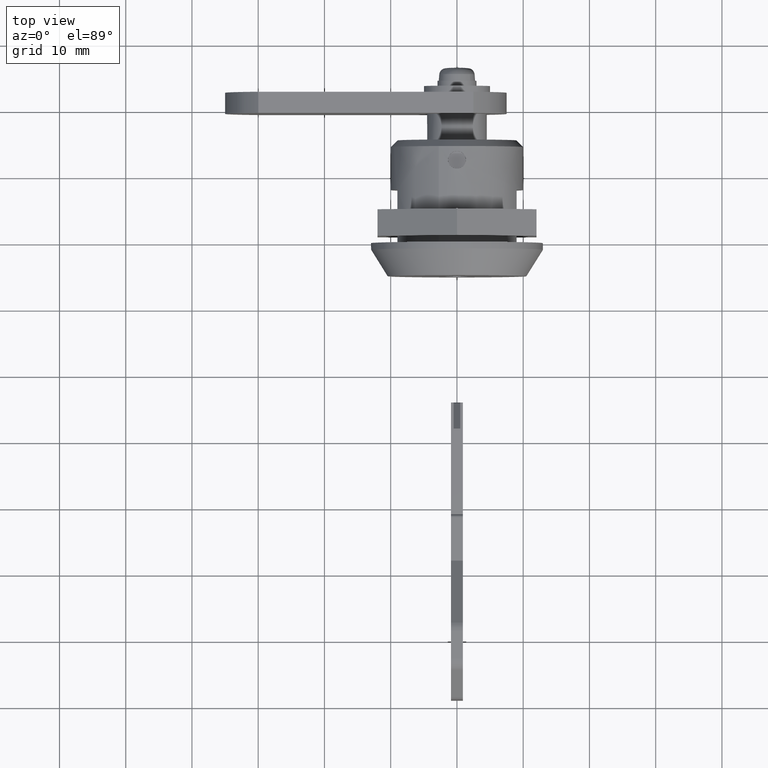
[diagram: clean part render]
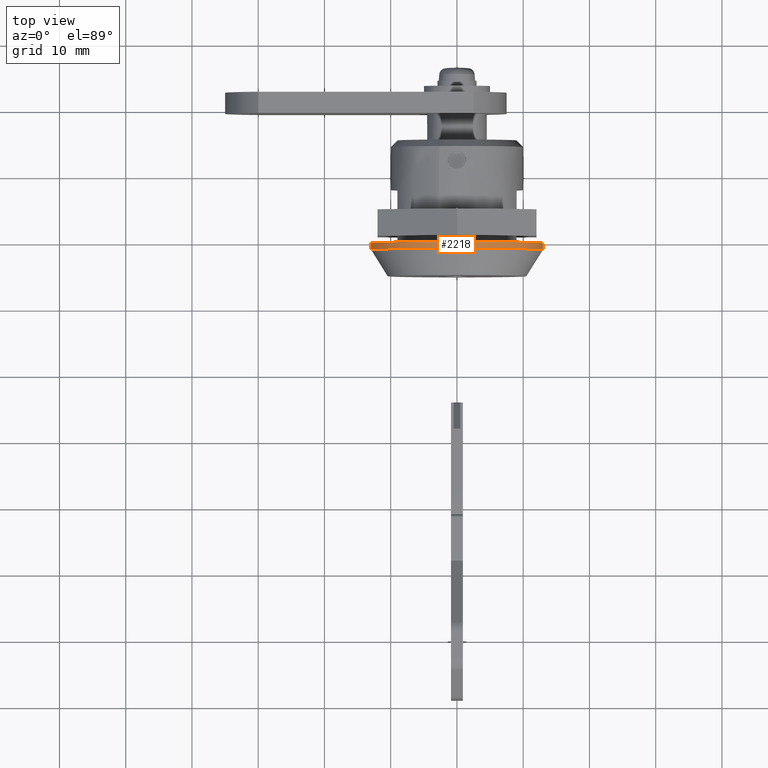
[diagram: same view with one face highlighted and labeled with its STEP entity id]
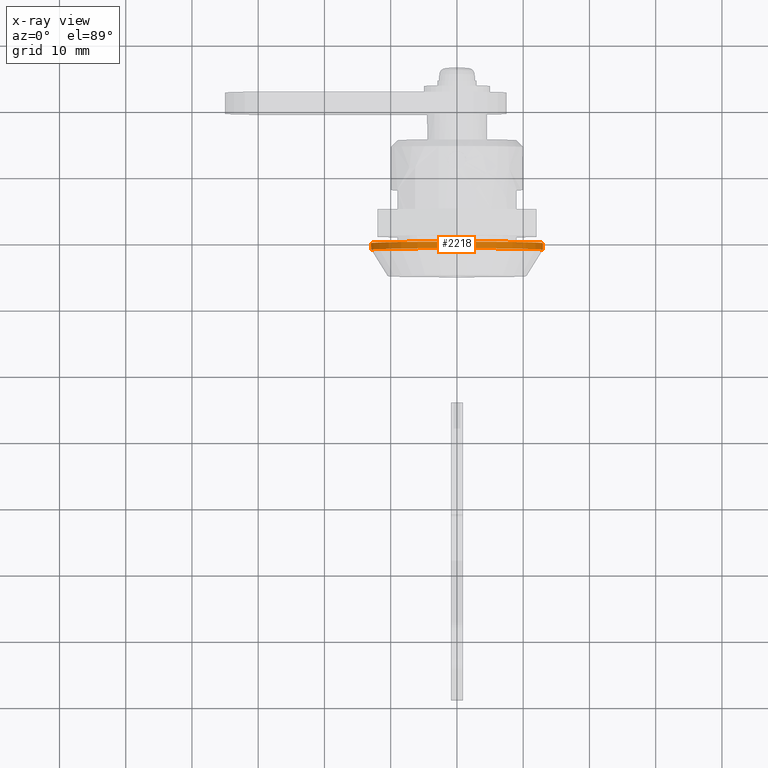
[diagram: x-ray of the same camera — body ghosted, the highlighted face saturated]
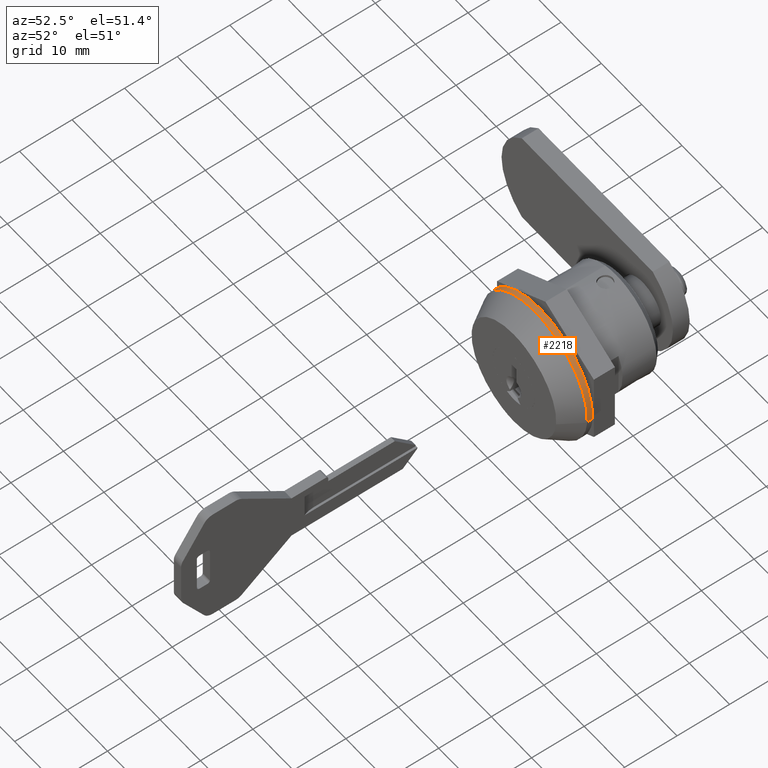
[diagram: same view with one face highlighted and labeled with its STEP entity id]
A machine part, top view. The second image highlights one B-rep face of the part: STEP entity #2218.
The next image is the same camera in x-ray: the body ghosted, the highlighted face saturated — about 0% of this face is hidden behind the body in this view.
A second angle (auxiliary view) of the same face is appended — the face is thin or edge-on in the first view.
In plain terms, the highlighted face is a freeform B-spline surface patch.
Its self-contained STEP definition (entity closure, byte-faithful):
#2021=CARTESIAN_POINT('',(-1.000024000090166,12.915091566900291,-1.483307728909361));
#2022=VERTEX_POINT('',#2021);
#2038=CARTESIAN_POINT('',(3.513304E-017,12.915091566904550,-1.483307728872314));
#2039=VERTEX_POINT('',#2038);
#2040=CARTESIAN_POINT('',(3.513304E-017,12.915091566904550,-1.483307728872314));
#2041=CARTESIAN_POINT('',(-1.000024000090166,12.915091566900291,-1.483307728909361));
#2042=QUASI_UNIFORM_CURVE('',1,(#2040,#2041),.UNSPECIFIED.,.F.,.U.);
#2043=EDGE_CURVE('',#2039,#2022,#2042,.T.);
#2060=CARTESIAN_POINT('',(-2.255141E-017,-12.975745653421569,-0.793609940302763));
#2061=VERTEX_POINT('',#2060);
#2075=CARTESIAN_POINT('',(-1.000024000089675,-12.975744475953359,-0.793629192271381));
#2076=VERTEX_POINT('',#2075);
#2077=CARTESIAN_POINT('',(-2.255141E-017,-12.975745653421569,-0.793609940302763));
#2078=CARTESIAN_POINT('',(-1.000024000089675,-12.975744475953359,-0.793629192271381));
#2079=QUASI_UNIFORM_CURVE('',1,(#2077,#2078),.UNSPECIFIED.,.F.,.U.);
#2080=EDGE_CURVE('',#2061,#2076,#2079,.T.);
#2113=CARTESIAN_POINT('',(0.025000600002254,-12.975744394405780,-0.793630525564818));
#2114=CARTESIAN_POINT('',(0.025000600002254,-13.769374919970598,12.182113868840961));
#2115=CARTESIAN_POINT('',(0.025000600002254,-0.793630525564818,12.975744394405780));
#2116=CARTESIAN_POINT('',(0.025000600002254,12.182113868840961,13.769374919970598));
#2117=CARTESIAN_POINT('',(0.025000600002254,12.975744394405780,0.793630525564818));
#2118=CARTESIAN_POINT('',(0.025000600002254,13.045539271102907,-0.347505621405360));
#2119=CARTESIAN_POINT('',(0.025000600002254,12.915091566910631,-1.483307728819356));
#2120=CARTESIAN_POINT('',(-1.025649615092477,-12.975744394405780,-0.793630525564818));
#2121=CARTESIAN_POINT('',(-1.025649615092477,-13.769374919970598,12.182113868840961));
#2122=CARTESIAN_POINT('',(-1.025649615092477,-0.793630525564818,12.975744394405780));
#2123=CARTESIAN_POINT('',(-1.025649615092477,12.182113868840961,13.769374919970598));
#2124=CARTESIAN_POINT('',(-1.025649615092477,12.975744394405780,0.793630525564818));
#2125=CARTESIAN_POINT('',(-1.025649615092477,13.045539271102907,-0.347505621405360));
#2126=CARTESIAN_POINT('',(-1.025649615092477,12.915091566910631,-1.483307728819356));
#2134=(BOUNDED_SURFACE()B_SPLINE_SURFACE(2,1,((#2113,#2120),(#2114,#2121),(#2115,#2122),(#2116,#2123),(#2117,#2124),(#2118,#2125),(#2119,#2126)),.UNSPECIFIED.,.F.,.F.,.U.)B_SPLINE_SURFACE_WITH_KNOTS((3,2,2,3),(2,2),(0.0,21.539091988566781,43.078183977133563,45.662875015761578),(0.0,1.0),.UNSPECIFIED.)GEOMETRIC_REPRESENTATION_ITEM()RATIONAL_B_SPLINE_SURFACE(((1.0,1.0),(0.707106781186548,0.707106781186548),(1.0,1.0),(0.707106781186548,0.707106781186548),(1.0,1.0),(0.964852813742386,0.964852813742386),(0.938140952186599,0.938140952186599)))REPRESENTATION_ITEM('')SURFACE());
#2135=CARTESIAN_POINT('',(-1.000024000089597,12.959917363191989,1.019967616792557));
#2136=VERTEX_POINT('',#2135);
#2137=CARTESIAN_POINT('',(-1.000024000089597,12.959917363191989,1.019967616792557));
#2138=CARTESIAN_POINT('',(-1.000024000090166,12.999991999999905,0.510771076782175));
#2139=CARTESIAN_POINT('',(-1.000024000090166,12.999991999999899,0.0));
#2140=CARTESIAN_POINT('',(-1.000024000090166,12.999991999999896,-0.744083597521805));
#2141=CARTESIAN_POINT('',(-1.000024000090166,12.915091566900298,-1.483307728909361));
#2149=(BOUNDED_CURVE()B_SPLINE_CURVE(2,(#2137,#2138,#2139,#2140,#2141),.UNSPECIFIED.,.F.,.U.)B_SPLINE_CURVE_WITH_KNOTS((3,2,3),(0.236331300632679,0.250000000000000,0.269767755878968),.UNSPECIFIED.)CURVE()GEOMETRIC_REPRESENTATION_ITEM()RATIONAL_B_SPLINE_CURVE((0.969723356171633,0.983986122581248,1.0,0.976840633407562,0.957343736456011))REPRESENTATION_ITEM(''));
#2150=EDGE_CURVE('',#2136,#2022,#2149,.T.);
#2151=ORIENTED_EDGE('',*,*,#2150,.F.);
#2152=CARTESIAN_POINT('',(-1.000024000090166,0.0,12.999991999999899));
#2153=VERTEX_POINT('',#2152);
#2154=CARTESIAN_POINT('',(-1.000024000090166,0.0,12.999991999999899));
#2155=CARTESIAN_POINT('',(-1.000024000090166,12.017068996426508,12.999991999999899));
#2156=CARTESIAN_POINT('',(-1.000024000089597,12.959917363191986,1.019967616792557));
#2164=(BOUNDED_CURVE()B_SPLINE_CURVE(2,(#2154,#2155,#2156),.UNSPECIFIED.,.F.,.U.)B_SPLINE_CURVE_WITH_KNOTS((3,3),(0.0,0.236331300632679),.UNSPECIFIED.)CURVE()GEOMETRIC_REPRESENTATION_ITEM()RATIONAL_B_SPLINE_CURVE((1.0,0.723120658605299,0.969723356171633))REPRESENTATION_ITEM(''));
#2165=EDGE_CURVE('',#2153,#2136,#2164,.T.);
#2166=ORIENTED_EDGE('',*,*,#2165,.F.);
#2167=CARTESIAN_POINT('',(-1.000024000089675,-12.975744475953361,-0.793629192271381));
#2168=CARTESIAN_POINT('',(-1.000024000090166,-12.999991999999896,-0.397185009943619));
#2169=CARTESIAN_POINT('',(-1.000024000090166,-12.999991999999899,0.0));
#2170=CARTESIAN_POINT('',(-1.000024000090166,-12.999991999999898,12.999991999999898));
#2171=CARTESIAN_POINT('',(-1.000024000090166,0.0,12.999991999999899));
#2179=(BOUNDED_CURVE()B_SPLINE_CURVE(2,(#2167,#2168,#2169,#2170,#2171),.UNSPECIFIED.,.F.,.U.)B_SPLINE_CURVE_WITH_KNOTS((3,2,3),(0.739332979971626,0.750000000000000,1.0),.UNSPECIFIED.)CURVE()GEOMETRIC_REPRESENTATION_ITEM()RATIONAL_B_SPLINE_CURVE((0.976072079671236,0.987502808674968,1.0,0.707106781186547,1.0))REPRESENTATION_ITEM(''));
#2180=EDGE_CURVE('',#2076,#2153,#2179,.T.);
#2181=ORIENTED_EDGE('',*,*,#2180,.F.);
#2182=ORIENTED_EDGE('',*,*,#2080,.F.);
#2183=CARTESIAN_POINT('',(0.0,0.0,12.999991999999899));
#2184=VERTEX_POINT('',#2183);
#2185=CARTESIAN_POINT('',(-2.255141E-017,-12.975745653421562,-0.793609940302763));
#2186=CARTESIAN_POINT('',(0.0,-12.999991999999903,-0.397175356970233));
#2187=CARTESIAN_POINT('',(0.0,-12.999991999999899,0.0));
#2188=CARTESIAN_POINT('',(0.0,-12.999991999999898,12.999991999999898));
#2189=CARTESIAN_POINT('',(0.0,0.0,12.999991999999899));
#2197=(BOUNDED_CURVE()B_SPLINE_CURVE(2,(#2185,#2186,#2187,#2188,#2189),.UNSPECIFIED.,.F.,.U.)B_SPLINE_CURVE_WITH_KNOTS((3,2,3),(0.739333235977447,0.750000000000000,1.0),.UNSPECIFIED.)CURVE()GEOMETRIC_REPRESENTATION_ITEM()RATIONAL_B_SPLINE_CURVE((0.976072628341143,0.987503108604444,1.0,0.707106781186547,1.0))REPRESENTATION_ITEM(''));
#2198=EDGE_CURVE('',#2061,#2184,#2197,.T.);
#2199=ORIENTED_EDGE('',*,*,#2198,.T.);
#2200=CARTESIAN_POINT('',(0.0,0.0,12.999991999999899));
#2201=CARTESIAN_POINT('',(0.0,12.999991999999898,12.999991999999898));
#2202=CARTESIAN_POINT('',(0.0,12.999991999999899,0.0));
#2203=CARTESIAN_POINT('',(0.0,12.999991999999901,-0.744083597484398));
#2204=CARTESIAN_POINT('',(3.513304E-017,12.915091566904549,-1.483307728872315));
#2212=(BOUNDED_CURVE()B_SPLINE_CURVE(2,(#2200,#2201,#2202,#2203,#2204),.UNSPECIFIED.,.F.,.U.)B_SPLINE_CURVE_WITH_KNOTS((3,2,3),(0.0,0.250000000000000,0.269767755877997),.UNSPECIFIED.)CURVE()GEOMETRIC_REPRESENTATION_ITEM()RATIONAL_B_SPLINE_CURVE((1.0,0.707106781186547,1.0,0.976840633408700,0.957343736457926))REPRESENTATION_ITEM(''));
#2213=EDGE_CURVE('',#2184,#2039,#2212,.T.);
#2214=ORIENTED_EDGE('',*,*,#2213,.T.);
#2215=ORIENTED_EDGE('',*,*,#2043,.T.);
#2216=EDGE_LOOP('',(#2151,#2166,#2181,#2182,#2199,#2214,#2215));
#2217=FACE_OUTER_BOUND('',#2216,.T.);
#2218=ADVANCED_FACE('',(#2217),#2134,.T.);